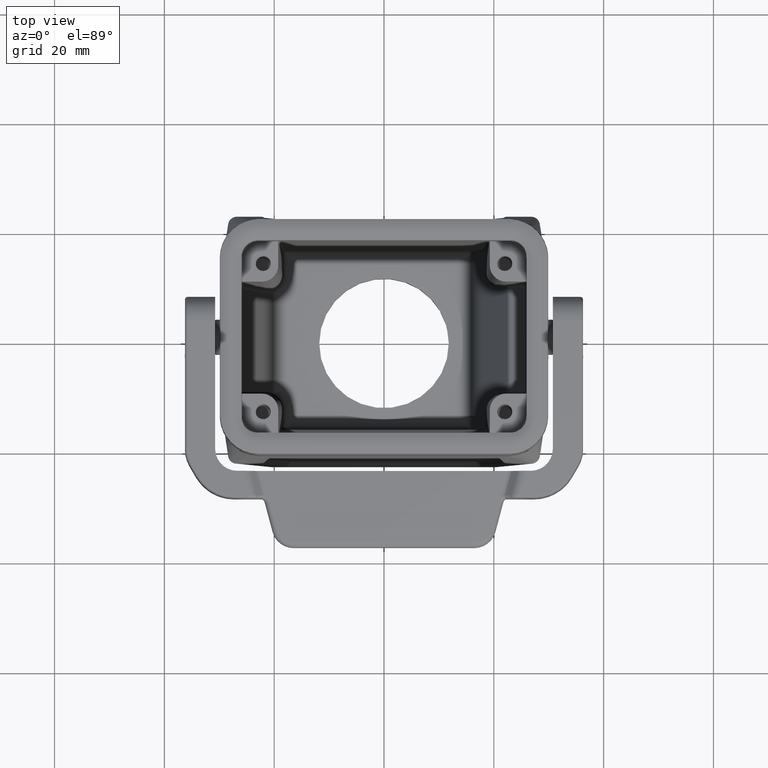
[diagram: clean part render]
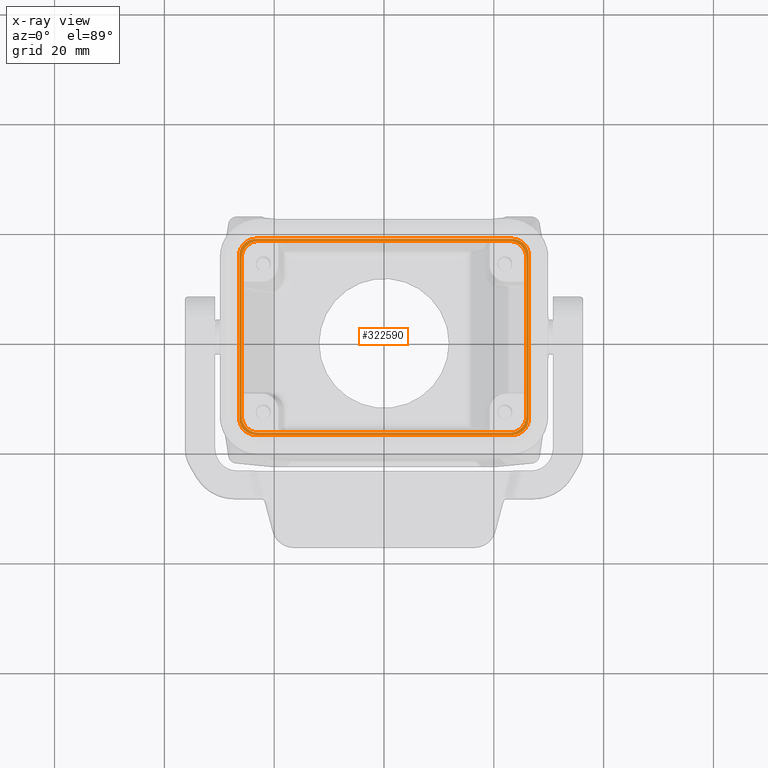
[diagram: x-ray — body ghosted, one internal face saturated and labeled with its STEP entity id]
A machine part, top view, then the same camera in x-ray: the body is ghosted and one INTERNAL B-rep face — a face not visible from any outside direction — is saturated and labeled: STEP entity #322590.
In plain terms, the highlighted planar face has unit normal (-0, 0, -1).
Its self-contained STEP definition (entity closure, byte-faithful):
#20260=CARTESIAN_POINT('',(67.2375358988396,73.6739148365527,
0.250000000000041));
#20270=VERTEX_POINT('',#20260);
#20300=CARTESIAN_POINT('',(64.2370789147078,73.6730009378902,
0.250000000000041));
#20310=DIRECTION('',(-1.06825137139798E-62,-1.73472347597681E-16,1.));
#20320=DIRECTION('',(-0.707106781186294,-0.707106781186801,
-1.22663473334714E-16));
#20330=AXIS2_PLACEMENT_3D('',#20300,#20310,#20320);
#20340=ELLIPSE('',#20330,3.00091389867315,3.);
#20350=CARTESIAN_POINT('',(64.2379928133704,76.6734579220219,
0.250000000000041));
#20360=VERTEX_POINT('',#20350);
#20370=EDGE_CURVE('',#20270,#20360,#20340,.T.);
#28340=CARTESIAN_POINT('',(34.5110770389275,73.6730009378902,
0.250000000000041));
#28350=DIRECTION('',(-1.06825137139798E-62,-1.73472347597681E-16,1.));
#28360=DIRECTION('',(0.707106781186294,-0.707106781186801,
-1.22663473334714E-16));
#28370=AXIS2_PLACEMENT_3D('',#28340,#28350,#28360);
#28380=ELLIPSE('',#28370,3.00091389867315,3.);
#28390=CARTESIAN_POINT('',(34.510163140265,76.6734579220219,
0.250000000000041));
#28400=VERTEX_POINT('',#28390);
#28410=CARTESIAN_POINT('',(31.5106200547958,73.6739148365527,
0.250000000000041));
#28420=VERTEX_POINT('',#28410);
#28430=EDGE_CURVE('',#28400,#28420,#28380,.T.);
#162480=CARTESIAN_POINT('',(67.2375358988396,26.9460851634473,
0.250000000000034));
#162490=VERTEX_POINT('',#162480);
#162520=CARTESIAN_POINT('',(67.2375358988396,0.,0.250000000000028));
#162530=DIRECTION('',(3.02797109056783E-18,-1.,-1.73472347597681E-16));
#162540=VECTOR('',#162530,1.);
#162550=LINE('',#162520,#162540);
#162560=EDGE_CURVE('',#20270,#162490,#162550,.T.);
#192750=CARTESIAN_POINT('',(133.974077976818,1.56000000000001,
0.250000000000028));
#192760=DIRECTION('',(-1.06825137139798E-62,-1.73472347597681E-16,1.));
#192770=DIRECTION('',(-1.,6.15804989205242E-47,0.));
#192780=AXIS2_PLACEMENT_3D('',#192750,#192760,#192770);
#192790=PLANE('',#192780);
#198720=CARTESIAN_POINT('',(31.5106200547958,0.,0.250000000000028));
#198730=DIRECTION('',(-3.02797109056783E-18,-1.,-1.73472347597681E-16));
#198740=VECTOR('',#198730,1.);
#198750=LINE('',#198720,#198740);
#198760=CARTESIAN_POINT('',(31.5106200547958,26.9460851634473,
0.250000000000034));
#198770=VERTEX_POINT('',#198760);
#198780=EDGE_CURVE('',#28420,#198770,#198750,.T.);
#200770=CARTESIAN_POINT('',(0.,76.6734579220219,0.250000000000041));
#200780=DIRECTION('',(1.,-1.86463970474091E-64,1.06825137139798E-62));
#200790=VECTOR('',#200780,1.);
#200800=LINE('',#200770,#200790);
#200810=EDGE_CURVE('',#28400,#20360,#200800,.T.);
#251800=CARTESIAN_POINT('',(34.5110770389275,26.9469990621098,
0.250000000000032));
#251810=DIRECTION('',(-1.06825137139798E-62,-1.73472347597681E-16,1.));
#251820=DIRECTION('',(-0.707106781186308,-0.707106781186787,
-1.22663473334712E-16));
#251830=AXIS2_PLACEMENT_3D('',#251800,#251810,#251820);
#251840=ELLIPSE('',#251830,3.00091389867315,3.);
#251850=CARTESIAN_POINT('',(34.510163140265,23.9465420779781,
0.250000000000032));
#251860=VERTEX_POINT('',#251850);
#251870=EDGE_CURVE('',#198770,#251860,#251840,.T.);
#263730=CARTESIAN_POINT('',(0.,23.9465420779781,0.250000000000032));
#263740=DIRECTION('',(-1.,4.09837892165604E-31,8.75944950861762E-47));
#263750=VECTOR('',#263740,1.);
#263760=LINE('',#263730,#263750);
#263770=CARTESIAN_POINT('',(64.2379928133704,23.9465420779781,
0.250000000000032));
#263780=VERTEX_POINT('',#263770);
#263790=EDGE_CURVE('',#263780,#251860,#263760,.T.);
#264050=CARTESIAN_POINT('',(64.2370789147079,26.9469990621098,
0.250000000000032));
#264060=DIRECTION('',(-1.06825137139798E-62,-1.73472347597681E-16,1.));
#264070=DIRECTION('',(0.707106781186308,-0.707106781186787,
-1.22663473334712E-16));
#264080=AXIS2_PLACEMENT_3D('',#264050,#264060,#264070);
#264090=ELLIPSE('',#264080,3.00091389867315,3.);
#264100=EDGE_CURVE('',#263780,#162490,#264090,.T.);
#319970=CARTESIAN_POINT('',(66.8240779768177,27.4095430854692,
0.250000000000034));
#319980=VERTEX_POINT('',#319970);
#320010=CARTESIAN_POINT('',(63.823620992686,27.4104569841317,
0.250000000000034));
#320020=DIRECTION('',(0.,-1.73472347597681E-16,1.));
#320030=DIRECTION('',(0.707106781186297,-0.707106781186798,
-1.22663473334713E-16));
#320040=AXIS2_PLACEMENT_3D('',#320010,#320020,#320030);
#320050=ELLIPSE('',#320040,3.00091389867315,3.);
#320060=CARTESIAN_POINT('',(63.8245348913485,24.41,0.250000000000032));
#320070=VERTEX_POINT('',#320060);
#320080=EDGE_CURVE('',#320070,#319980,#320050,.T.);
#320410=CARTESIAN_POINT('',(133.974077976818,24.41,0.250000000000032));
#320420=DIRECTION('',(-1.,6.15804989205242E-47,0.));
#320430=VECTOR('',#320420,1.);
#320440=LINE('',#320410,#320430);
#320450=CARTESIAN_POINT('',(34.9236210622869,24.41,0.250000000000032));
#320460=VERTEX_POINT('',#320450);
#320470=EDGE_CURVE('',#320070,#320460,#320440,.T.);
#320690=CARTESIAN_POINT('',(34.9245349609494,27.4104569841317,
0.250000000000034));
#320700=DIRECTION('',(0.,-1.73472347597681E-16,1.));
#320710=DIRECTION('',(-0.707106781186297,-0.707106781186798,
-1.22663473334713E-16));
#320720=AXIS2_PLACEMENT_3D('',#320690,#320700,#320710);
#320730=ELLIPSE('',#320720,3.00091389867315,3.);
#320740=CARTESIAN_POINT('',(31.9240779768177,27.4095430854692,
0.250000000000034));
#320750=VERTEX_POINT('',#320740);
#320760=EDGE_CURVE('',#320750,#320460,#320730,.T.);
#321020=CARTESIAN_POINT('',(31.9240779768177,1.56000000000001,
0.250000000000028));
#321030=DIRECTION('',(4.86297310957769E-33,1.,1.73472347597681E-16));
#321040=VECTOR('',#321030,1.);
#321050=LINE('',#321020,#321040);
#321060=CARTESIAN_POINT('',(31.9240779768177,73.2104569145308,
0.250000000000041));
#321070=VERTEX_POINT('',#321060);
#321080=EDGE_CURVE('',#320750,#321070,#321050,.T.);
#321260=CARTESIAN_POINT('',(34.9245349609494,73.2095430158683,
0.250000000000041));
#321270=DIRECTION('',(0.,-1.73472347597681E-16,1.));
#321280=DIRECTION('',(0.707106781186297,-0.707106781186798,
-1.22663473334713E-16));
#321290=AXIS2_PLACEMENT_3D('',#321260,#321270,#321280);
#321300=ELLIPSE('',#321290,3.00091389867315,3.);
#321310=CARTESIAN_POINT('',(34.9236210622869,76.21,0.250000000000041));
#321320=VERTEX_POINT('',#321310);
#321330=EDGE_CURVE('',#321320,#321070,#321300,.T.);
#321610=CARTESIAN_POINT('',(133.974077976818,76.21,0.250000000000041));
#321620=DIRECTION('',(1.,-6.15804989205242E-47,0.));
#321630=VECTOR('',#321620,1.);
#321640=LINE('',#321610,#321630);
#321650=CARTESIAN_POINT('',(63.8245348913485,76.21,0.250000000000041));
#321660=VERTEX_POINT('',#321650);
#321670=EDGE_CURVE('',#321320,#321660,#321640,.T.);
#321890=CARTESIAN_POINT('',(63.823620992686,73.2095430158683,
0.250000000000041));
#321900=DIRECTION('',(0.,-1.73472347597681E-16,1.));
#321910=DIRECTION('',(-0.707106781186297,-0.707106781186798,
-1.22663473334713E-16));
#321920=AXIS2_PLACEMENT_3D('',#321890,#321900,#321910);
#321930=ELLIPSE('',#321920,3.00091389867315,3.);
#321940=CARTESIAN_POINT('',(66.8240779768177,73.2104569145308,
0.250000000000041));
#321950=VERTEX_POINT('',#321940);
#321960=EDGE_CURVE('',#321950,#321660,#321930,.T.);
#322210=CARTESIAN_POINT('',(66.8240779768177,1.56000000000001,
0.250000000000028));
#322220=DIRECTION('',(-4.86297310957769E-33,-1.,-1.73472347597681E-16));
#322230=VECTOR('',#322220,1.);
#322240=LINE('',#322210,#322230);
#322250=EDGE_CURVE('',#321950,#319980,#322240,.T.);
#322390=ORIENTED_EDGE('',*,*,#20370,.T.);
#322400=ORIENTED_EDGE('',*,*,#162560,.F.);
#322410=ORIENTED_EDGE('',*,*,#264100,.T.);
#322420=ORIENTED_EDGE('',*,*,#263790,.F.);
#322430=ORIENTED_EDGE('',*,*,#251870,.T.);
#322440=ORIENTED_EDGE('',*,*,#198780,.T.);
#322450=ORIENTED_EDGE('',*,*,#28430,.T.);
#322460=ORIENTED_EDGE('',*,*,#200810,.F.);
#322470=EDGE_LOOP('',(#322460,#322450,#322440,#322430,#322420,#322410,
#322400,#322390));
#322480=FACE_OUTER_BOUND('',#322470,.T.);
#322490=ORIENTED_EDGE('',*,*,#320760,.F.);
#322500=ORIENTED_EDGE('',*,*,#320470,.T.);
#322510=ORIENTED_EDGE('',*,*,#320080,.F.);
#322520=ORIENTED_EDGE('',*,*,#322250,.T.);
#322530=ORIENTED_EDGE('',*,*,#321960,.F.);
#322540=ORIENTED_EDGE('',*,*,#321670,.T.);
#322550=ORIENTED_EDGE('',*,*,#321330,.F.);
#322560=ORIENTED_EDGE('',*,*,#321080,.T.);
#322570=EDGE_LOOP('',(#322560,#322550,#322540,#322530,#322520,#322510,
#322500,#322490));
#322580=FACE_BOUND('',#322570,.T.);
#322590=ADVANCED_FACE('',(#322480,#322580),#192790,.T.);